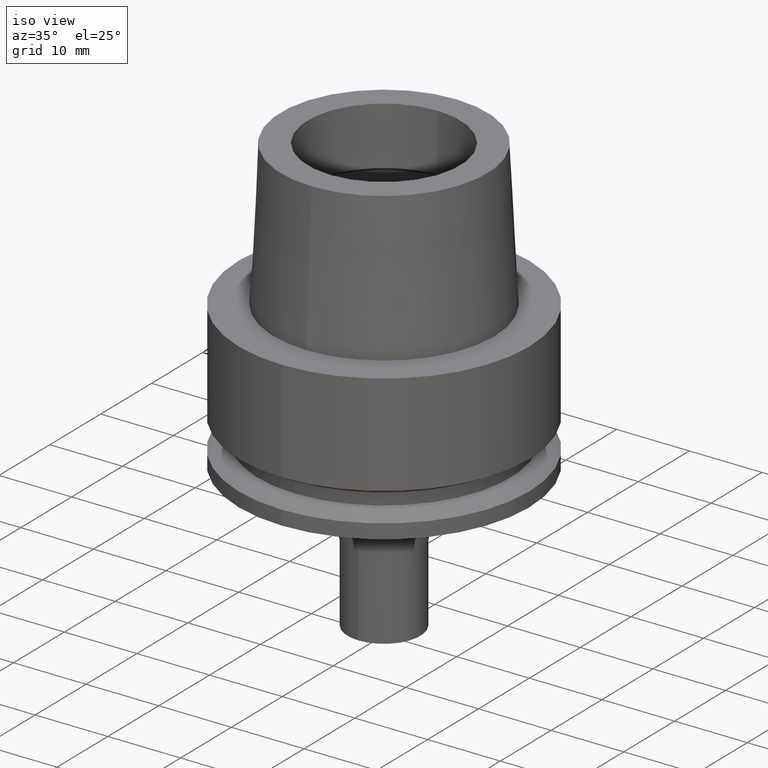
[diagram: clean part render]
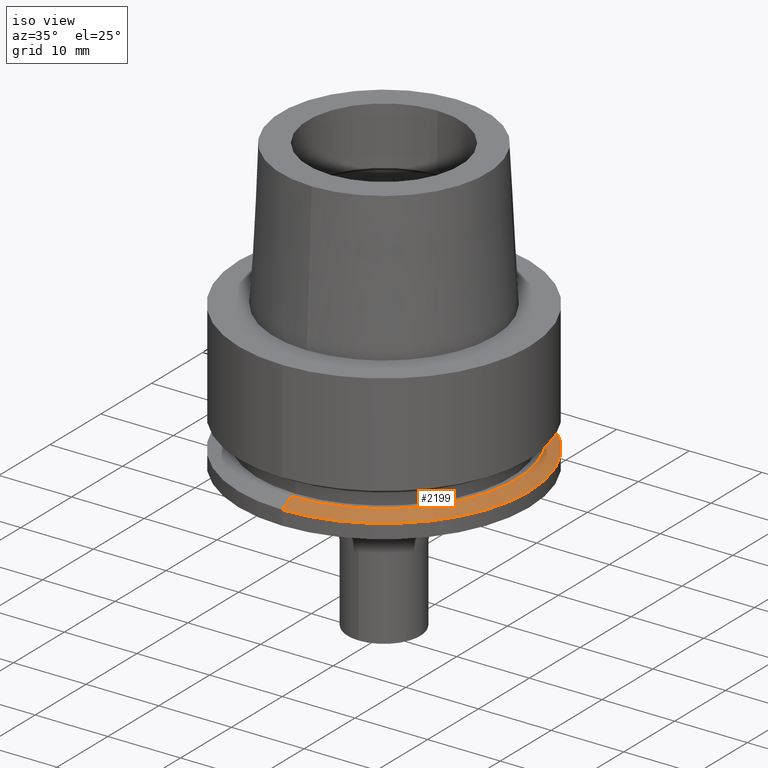
[diagram: same view with one face highlighted and labeled with its STEP entity id]
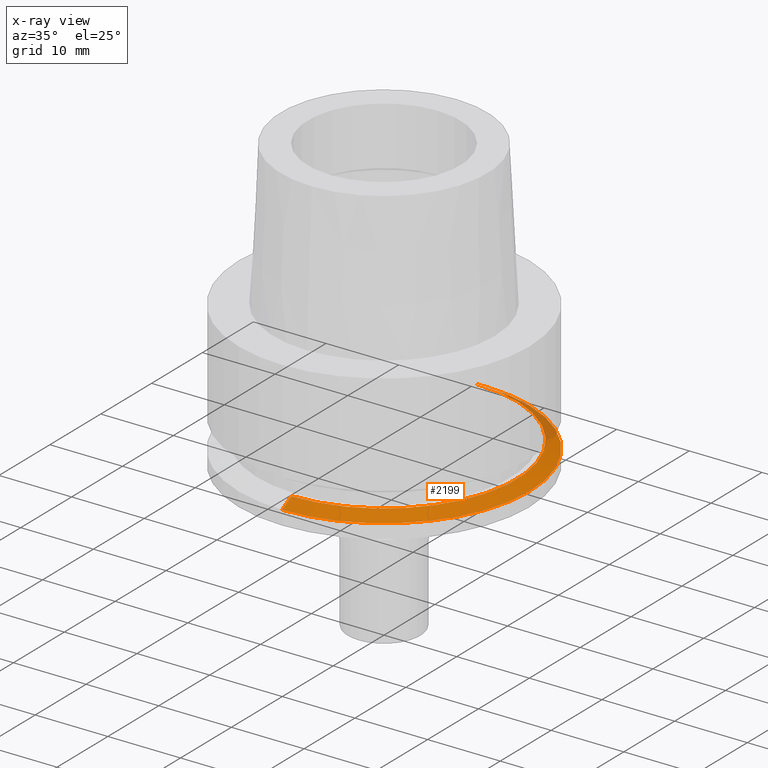
[diagram: x-ray of the same camera — body ghosted, the highlighted face saturated]
A machine part, iso view. The second image highlights one B-rep face of the part: STEP entity #2199.
The next image is the same camera in x-ray: the body ghosted, the highlighted face saturated — about 8% of this face is hidden behind the body in this view.
In plain terms, the highlighted conical surface has half-angle 60 deg.
Its self-contained STEP definition (entity closure, byte-faithful):
#178 = LINE ( 'NONE', #1011, #2370 ) ;
#333 = LINE ( 'NONE', #1166, #2316 ) ;
#477 = EDGE_LOOP ( 'NONE', ( #2052, #972, #2035, #1391 ) ) ;
#683 = CARTESIAN_POINT ( 'NONE',  ( 0.0000000000000000000, 18.23205080331999994, -17.00000000000000000 ) ) ;
#888 = EDGE_CURVE ( 'NONE', #1904, #2278, #2063, .T. ) ;
#957 = CARTESIAN_POINT ( 'NONE',  ( 0.0000000000000000000, 0.0000000000000000000, -18.02072594461999699 ) ) ;
#970 = DIRECTION ( 'NONE',  ( 0.0000000000000000000, 0.0000000000000000000, -1.000000000000000000 ) ) ;
#972 = ORIENTED_EDGE ( 'NONE', *, *, #1744, .T. ) ;
#1011 = CARTESIAN_POINT ( 'NONE',  ( 0.0000000000000000000, 18.23205080331999994, -17.00000000000000000 ) ) ;
#1166 = CARTESIAN_POINT ( 'NONE',  ( 0.0000000000000000000, -18.23205080331999994, -17.00000000000000000 ) ) ;
#1285 = AXIS2_PLACEMENT_3D ( 'NONE', #2534, #1298, #2132 ) ;
#1298 = DIRECTION ( 'NONE',  ( 0.0000000000000000000, 0.0000000000000000000, -1.000000000000000000 ) ) ;
#1391 = ORIENTED_EDGE ( 'NONE', *, *, #2611, .F. ) ;
#1403 = CARTESIAN_POINT ( 'NONE',  ( 0.0000000000000000000, -18.23205080331999994, -17.00000000000000000 ) ) ;
#1415 = AXIS2_PLACEMENT_3D ( 'NONE', #2197, #970, #2542 ) ;
#1604 = DIRECTION ( 'NONE',  ( 0.0000000000000000000, -0.8660254037841628172, -0.5000000000004778400 ) ) ;
#1648 = DIRECTION ( 'NONE',  ( 0.0000000000000000000, 0.8660254037841628172, -0.5000000000004778400 ) ) ;
#1731 = EDGE_CURVE ( 'NONE', #2049, #2522, #2068, .T. ) ;
#1744 = EDGE_CURVE ( 'NONE', #2522, #2278, #333, .T. ) ;
#1805 = CARTESIAN_POINT ( 'NONE',  ( 0.0000000000000000000, -20.00000000000000000, -18.02072594461999699 ) ) ;
#1904 = VERTEX_POINT ( 'NONE', #2662 ) ;
#2035 = ORIENTED_EDGE ( 'NONE', *, *, #888, .F. ) ;
#2049 = VERTEX_POINT ( 'NONE', #683 ) ;
#2052 = ORIENTED_EDGE ( 'NONE', *, *, #1731, .T. ) ;
#2063 = CIRCLE ( 'NONE', #2667, 20.00000000000000000 ) ;
#2068 = CIRCLE ( 'NONE', #1415, 18.23205080331999994 ) ;
#2132 = DIRECTION ( 'NONE',  ( 0.0000000000000000000, -1.000000000000000000, 0.0000000000000000000 ) ) ;
#2197 = CARTESIAN_POINT ( 'NONE',  ( 0.0000000000000000000, 0.0000000000000000000, -17.00000000000000000 ) ) ;
#2199 = ADVANCED_FACE ( 'NONE', ( #2354 ), #2459, .T. ) ;
#2230 = DIRECTION ( 'NONE',  ( 0.0000000000000000000, 0.0000000000000000000, -1.000000000000000000 ) ) ;
#2278 = VERTEX_POINT ( 'NONE', #1805 ) ;
#2316 = VECTOR ( 'NONE', #1604, 999.9999999999998863 ) ;
#2354 = FACE_OUTER_BOUND ( 'NONE', #477, .T. ) ;
#2370 = VECTOR ( 'NONE', #1648, 999.9999999999998863 ) ;
#2402 = DIRECTION ( 'NONE',  ( 0.0000000000000000000, 1.000000000000000000, 0.0000000000000000000 ) ) ;
#2459 = CONICAL_SURFACE ( 'NONE', #1285, 19.11602540165999997, 1.047197551196400456 ) ;
#2522 = VERTEX_POINT ( 'NONE', #1403 ) ;
#2534 = CARTESIAN_POINT ( 'NONE',  ( 0.0000000000000000000, 0.0000000000000000000, -17.51036297230999850 ) ) ;
#2542 = DIRECTION ( 'NONE',  ( 0.0000000000000000000, 1.000000000000000000, 0.0000000000000000000 ) ) ;
#2611 = EDGE_CURVE ( 'NONE', #2049, #1904, #178, .T. ) ;
#2662 = CARTESIAN_POINT ( 'NONE',  ( 0.0000000000000000000, 20.00000000000000000, -18.02072594461999699 ) ) ;
#2667 = AXIS2_PLACEMENT_3D ( 'NONE', #957, #2230, #2402 ) ;